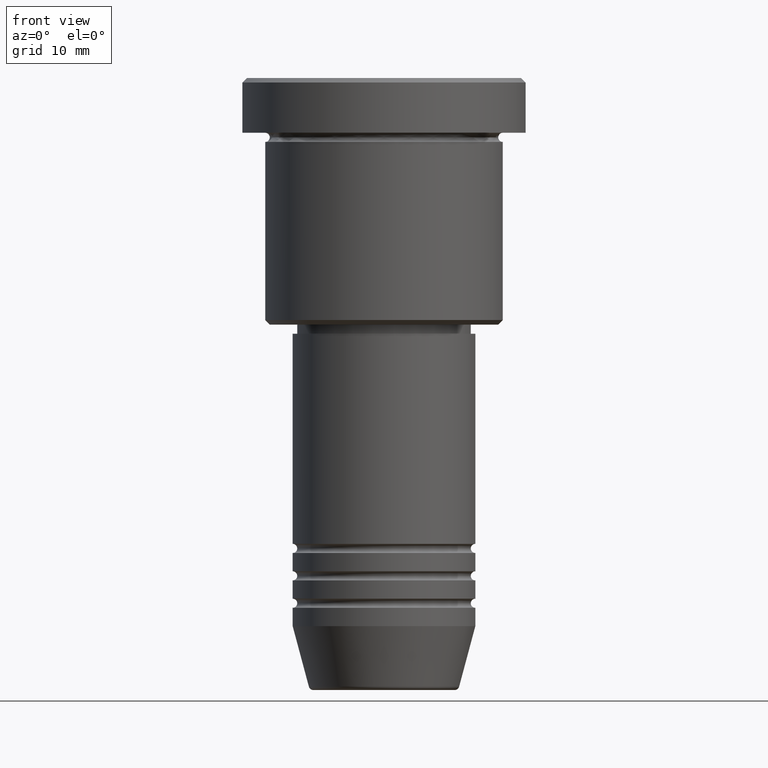
[diagram: clean part render]
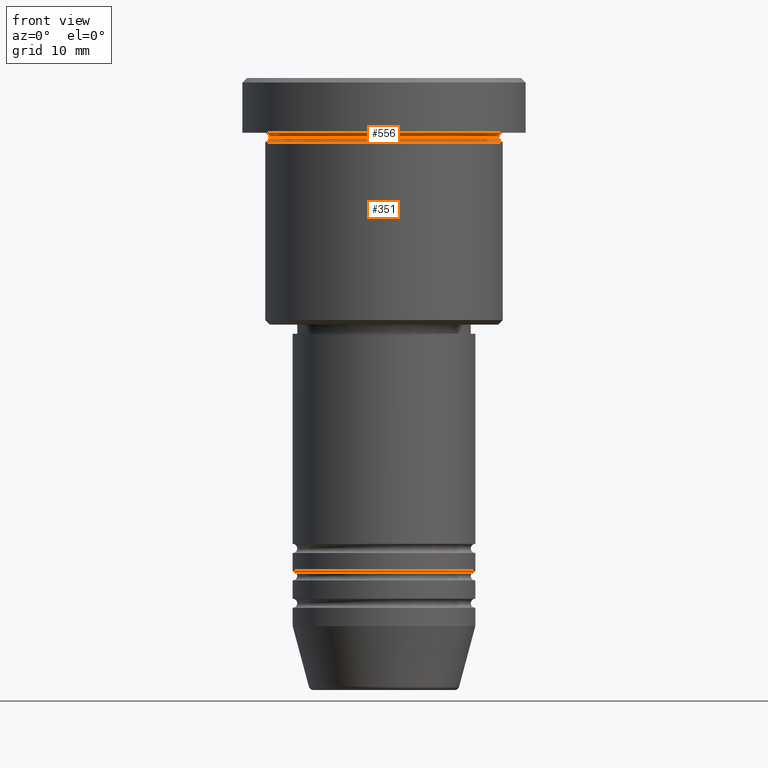
[diagram: same view with one multi-face feature highlighted, each face labeled with its STEP entity id]
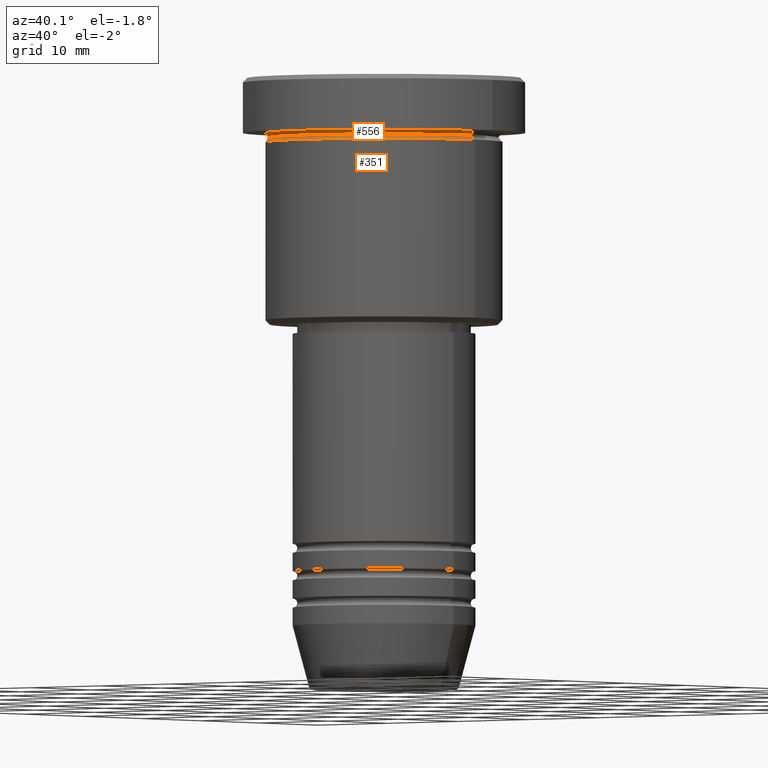
[diagram: same view with one multi-face feature highlighted, each face labeled with its STEP entity id]
A machine part, front view. The highlighted faces form ONE feature: a constant-radius fillet chain: 2 tangent blend faces with common blend radius 0.5 mm. The faces share edges in the B-rep.
A second angle (auxiliary view) of the same feature is appended — it is thin or edge-on in the first view.
Their STEP definitions:
[1] entity #556 (Torus):
#53 = DIRECTION ( 'NONE',  ( -1.000000000000000000, 0.000000000000000000, 0.000000000000000000 ) ) ;
#81 = DIRECTION ( 'NONE',  ( 0.000000000000000000, 0.000000000000000000, -1.000000000000000000 ) ) ;
#83 = DIRECTION ( 'NONE',  ( -0.000000000000000000, -1.000000000000000000, -0.000000000000000000 ) ) ;
#96 = VERTEX_POINT ( 'NONE', #693 ) ;
#114 = DIRECTION ( 'NONE',  ( -0.000000000000000000, -0.000000000000000000, 1.000000000000000000 ) ) ;
#119 = EDGE_CURVE ( 'NONE', #532, #1072, #1167, .T. ) ;
#178 = ORIENTED_EDGE ( 'NONE', *, *, #809, .F. ) ;
#260 = ORIENTED_EDGE ( 'NONE', *, *, #1009, .T. ) ;
#276 = CARTESIAN_POINT ( 'NONE',  ( -13.00000000000000000, 0.000000000000000000, -6.499999999999995559 ) ) ;
#323 = CARTESIAN_POINT ( 'NONE',  ( 0.000000000000000000, 0.000000000000000000, -5.999999999999995559 ) ) ;
#358 = CIRCLE ( 'NONE', #394, 12.49999999999999822 ) ;
#390 = AXIS2_PLACEMENT_3D ( 'NONE', #871, #855, #53 ) ;
#394 = AXIS2_PLACEMENT_3D ( 'NONE', #948, #114, #846 ) ;
#398 = DIRECTION ( 'NONE',  ( -1.000000000000000000, -1.224646799147353454E-16, 0.000000000000000000 ) ) ;
#401 = VERTEX_POINT ( 'NONE', #1064 ) ;
#426 = CARTESIAN_POINT ( 'NONE',  ( 13.00000000000000000, 1.592040838891559095E-15, -6.499999999999995559 ) ) ;
#435 = CIRCLE ( 'NONE', #1112, 13.00000000000000000 ) ;
#458 = ORIENTED_EDGE ( 'NONE', *, *, #646, .F. ) ;
#469 = CIRCLE ( 'NONE', #1053, 0.5000000000000004441 ) ;
#532 = VERTEX_POINT ( 'NONE', #1039 ) ;
#556 = ADVANCED_FACE ( 'NONE', ( #956 ), #628, .F. ) ;
#585 = AXIS2_PLACEMENT_3D ( 'NONE', #426, #605, #398 ) ;
#600 = ORIENTED_EDGE ( 'NONE', *, *, #119, .T. ) ;
#605 = DIRECTION ( 'NONE',  ( -1.224646799147353207E-16, 1.000000000000000000, 0.000000000000000000 ) ) ;
#628 = TOROIDAL_SURFACE ( 'NONE', #390, 13.00000000000000000, 0.5000000000000000000 ) ;
#646 = EDGE_CURVE ( 'NONE', #401, #1072, #435, .T. ) ;
#658 = EDGE_LOOP ( 'NONE', ( #260, #600, #458, #178 ) ) ;
#693 = CARTESIAN_POINT ( 'NONE',  ( -12.49999999999999822, 1.561424668912875308E-15, -6.499999999999995559 ) ) ;
#809 = EDGE_CURVE ( 'NONE', #96, #401, #469, .T. ) ;
#846 = DIRECTION ( 'NONE',  ( 1.000000000000000000, 0.000000000000000000, 0.000000000000000000 ) ) ;
#855 = DIRECTION ( 'NONE',  ( 0.000000000000000000, 0.000000000000000000, -1.000000000000000000 ) ) ;
#871 = CARTESIAN_POINT ( 'NONE',  ( 0.000000000000000000, 0.000000000000000000, -6.499999999999995559 ) ) ;
#948 = CARTESIAN_POINT ( 'NONE',  ( 0.000000000000000000, 0.000000000000000000, -6.499999999999995559 ) ) ;
#956 = FACE_OUTER_BOUND ( 'NONE', #658, .T. ) ;
#974 = DIRECTION ( 'NONE',  ( -0.000000000000000000, -0.000000000000000000, 1.000000000000000000 ) ) ;
#1009 = EDGE_CURVE ( 'NONE', #96, #532, #358, .T. ) ;
#1039 = CARTESIAN_POINT ( 'NONE',  ( 12.49999999999999822, 0.000000000000000000, -6.499999999999995559 ) ) ;
#1053 = AXIS2_PLACEMENT_3D ( 'NONE', #276, #83, #81 ) ;
#1060 = CARTESIAN_POINT ( 'NONE',  ( 13.00000000000000000, 1.592040838891559095E-15, -5.999999999999994671 ) ) ;
#1064 = CARTESIAN_POINT ( 'NONE',  ( -13.00000000000000000, 0.000000000000000000, -5.999999999999994671 ) ) ;
#1069 = DIRECTION ( 'NONE',  ( -1.000000000000000000, 0.000000000000000000, 0.000000000000000000 ) ) ;
#1072 = VERTEX_POINT ( 'NONE', #1060 ) ;
#1112 = AXIS2_PLACEMENT_3D ( 'NONE', #323, #974, #1069 ) ;
#1167 = CIRCLE ( 'NONE', #585, 0.5000000000000004441 ) ;
[2] entity #351 (Torus):
#33 = ORIENTED_EDGE ( 'NONE', *, *, #1009, .F. ) ;
#77 = AXIS2_PLACEMENT_3D ( 'NONE', #377, #971, #504 ) ;
#78 = CIRCLE ( 'NONE', #172, 0.5000000000000004441 ) ;
#96 = VERTEX_POINT ( 'NONE', #693 ) ;
#114 = DIRECTION ( 'NONE',  ( -0.000000000000000000, -0.000000000000000000, 1.000000000000000000 ) ) ;
#162 = DIRECTION ( 'NONE',  ( 1.224646799147353207E-16, 1.000000000000000000, 0.000000000000000000 ) ) ;
#172 = AXIS2_PLACEMENT_3D ( 'NONE', #703, #162, #910 ) ;
#195 = CARTESIAN_POINT ( 'NONE',  ( 13.00000000000000000, 0.000000000000000000, -6.999999999999995559 ) ) ;
#211 = DIRECTION ( 'NONE',  ( 1.000000000000000000, 0.000000000000000000, 0.000000000000000000 ) ) ;
#289 = DIRECTION ( 'NONE',  ( 0.000000000000000000, 0.000000000000000000, -1.000000000000000000 ) ) ;
#319 = CARTESIAN_POINT ( 'NONE',  ( -13.00000000000000000, 1.592040838891559095E-15, -6.999999999999995559 ) ) ;
#351 = ADVANCED_FACE ( 'NONE', ( #792 ), #1125, .F. ) ;
#358 = CIRCLE ( 'NONE', #394, 12.49999999999999822 ) ;
#377 = CARTESIAN_POINT ( 'NONE',  ( 0.000000000000000000, 0.000000000000000000, -6.999999999999995559 ) ) ;
#381 = DIRECTION ( 'NONE',  ( 0.000000000000000000, -1.000000000000000000, 0.000000000000000000 ) ) ;
#391 = EDGE_CURVE ( 'NONE', #566, #842, #979, .T. ) ;
#394 = AXIS2_PLACEMENT_3D ( 'NONE', #948, #114, #846 ) ;
#437 = AXIS2_PLACEMENT_3D ( 'NONE', #853, #381, #289 ) ;
#504 = DIRECTION ( 'NONE',  ( 1.000000000000000000, 0.000000000000000000, 0.000000000000000000 ) ) ;
#532 = VERTEX_POINT ( 'NONE', #1039 ) ;
#566 = VERTEX_POINT ( 'NONE', #319 ) ;
#690 = EDGE_CURVE ( 'NONE', #96, #566, #78, .T. ) ;
#693 = CARTESIAN_POINT ( 'NONE',  ( -12.49999999999999822, 1.561424668912875308E-15, -6.499999999999995559 ) ) ;
#703 = CARTESIAN_POINT ( 'NONE',  ( -13.00000000000000000, 1.592040838891559095E-15, -6.499999999999995559 ) ) ;
#749 = ORIENTED_EDGE ( 'NONE', *, *, #911, .F. ) ;
#792 = FACE_OUTER_BOUND ( 'NONE', #898, .T. ) ;
#842 = VERTEX_POINT ( 'NONE', #195 ) ;
#846 = DIRECTION ( 'NONE',  ( 1.000000000000000000, 0.000000000000000000, 0.000000000000000000 ) ) ;
#853 = CARTESIAN_POINT ( 'NONE',  ( 13.00000000000000000, 0.000000000000000000, -6.499999999999995559 ) ) ;
#898 = EDGE_LOOP ( 'NONE', ( #33, #972, #1114, #749 ) ) ;
#910 = DIRECTION ( 'NONE',  ( -1.000000000000000000, 1.224646799147353454E-16, 0.000000000000000000 ) ) ;
#911 = EDGE_CURVE ( 'NONE', #532, #842, #927, .T. ) ;
#927 = CIRCLE ( 'NONE', #437, 0.5000000000000004441 ) ;
#948 = CARTESIAN_POINT ( 'NONE',  ( 0.000000000000000000, 0.000000000000000000, -6.499999999999995559 ) ) ;
#971 = DIRECTION ( 'NONE',  ( -0.000000000000000000, -0.000000000000000000, 1.000000000000000000 ) ) ;
#972 = ORIENTED_EDGE ( 'NONE', *, *, #690, .T. ) ;
#979 = CIRCLE ( 'NONE', #77, 13.00000000000000000 ) ;
#1009 = EDGE_CURVE ( 'NONE', #96, #532, #358, .T. ) ;
#1039 = CARTESIAN_POINT ( 'NONE',  ( 12.49999999999999822, 0.000000000000000000, -6.499999999999995559 ) ) ;
#1042 = DIRECTION ( 'NONE',  ( -0.000000000000000000, -0.000000000000000000, 1.000000000000000000 ) ) ;
#1061 = CARTESIAN_POINT ( 'NONE',  ( 0.000000000000000000, 0.000000000000000000, -6.499999999999995559 ) ) ;
#1114 = ORIENTED_EDGE ( 'NONE', *, *, #391, .T. ) ;
#1125 = TOROIDAL_SURFACE ( 'NONE', #1172, 13.00000000000000000, 0.5000000000000000000 ) ;
#1172 = AXIS2_PLACEMENT_3D ( 'NONE', #1061, #1042, #211 ) ;